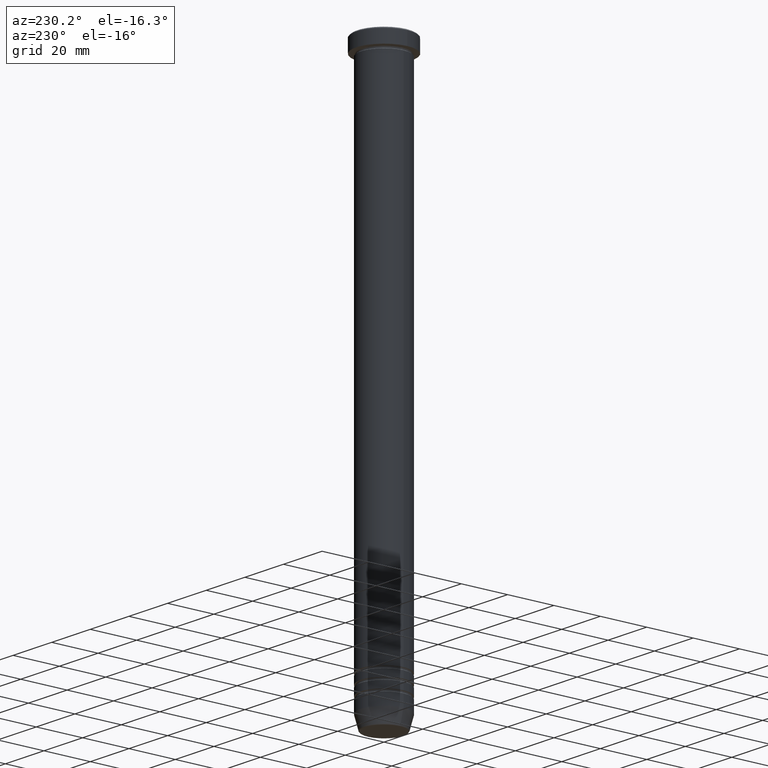
[diagram: clean part render]
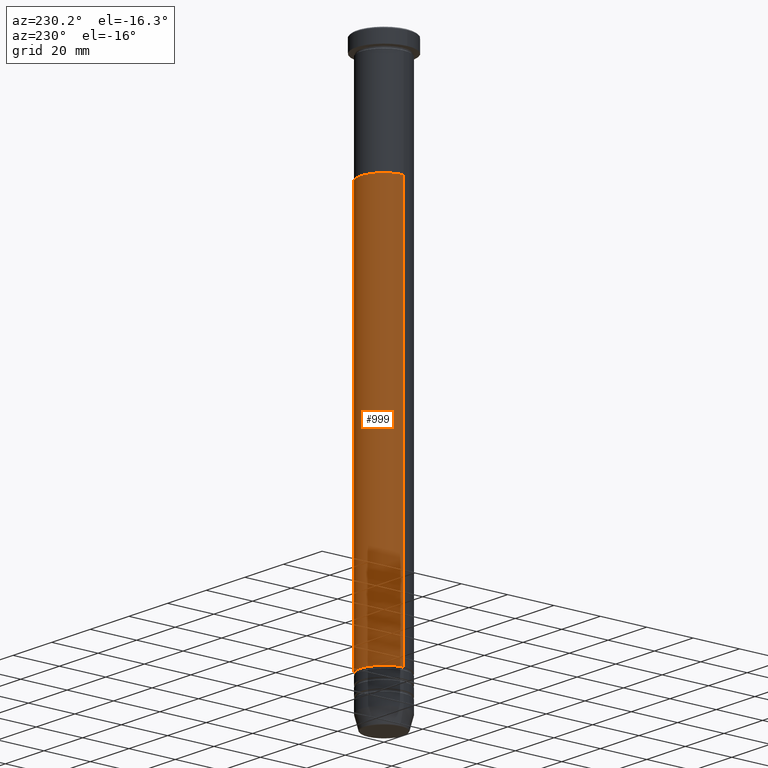
[diagram: same view with one face highlighted and labeled with its STEP entity id]
A machine part, auxiliary view. The second image highlights one B-rep face of the part: STEP entity #999.
In plain terms, the highlighted cylindrical surface (edge-blend (fillet) strip) has radius 10 mm, axis along (-0, -0, 1).
Its self-contained STEP definition (entity closure, byte-faithful):
#18 = CYLINDRICAL_SURFACE ( 'NONE', #203, 9.999999999999996447 ) ;
#116 = ORIENTED_EDGE ( 'NONE', *, *, #156, .T. ) ;
#140 = DIRECTION ( 'NONE',  ( -0.000000000000000000, -0.000000000000000000, 1.000000000000000000 ) ) ;
#156 = EDGE_CURVE ( 'NONE', #727, #258, #737, .T. ) ;
#203 = AXIS2_PLACEMENT_3D ( 'NONE', #591, #357, #271 ) ;
#258 = VERTEX_POINT ( 'NONE', #712 ) ;
#265 = ORIENTED_EDGE ( 'NONE', *, *, #606, .T. ) ;
#271 = DIRECTION ( 'NONE',  ( 1.000000000000000000, 0.000000000000000000, 0.000000000000000000 ) ) ;
#272 = CARTESIAN_POINT ( 'NONE',  ( -9.999999999999996447, 1.224646799147352862E-15, 0.000000000000000000 ) ) ;
#275 = AXIS2_PLACEMENT_3D ( 'NONE', #723, #382, #395 ) ;
#318 = VECTOR ( 'NONE', #599, 1000.000000000000000 ) ;
#355 = CIRCLE ( 'NONE', #731, 10.00000000000000000 ) ;
#357 = DIRECTION ( 'NONE',  ( -0.000000000000000000, -0.000000000000000000, 1.000000000000000000 ) ) ;
#382 = DIRECTION ( 'NONE',  ( -0.000000000000000000, -0.000000000000000000, 1.000000000000000000 ) ) ;
#395 = DIRECTION ( 'NONE',  ( 1.000000000000000000, 0.000000000000000000, 0.000000000000000000 ) ) ;
#447 = LINE ( 'NONE', #694, #558 ) ;
#558 = VECTOR ( 'NONE', #140, 1000.000000000000000 ) ;
#570 = ORIENTED_EDGE ( 'NONE', *, *, #831, .F. ) ;
#583 = VERTEX_POINT ( 'NONE', #1008 ) ;
#591 = CARTESIAN_POINT ( 'NONE',  ( 0.000000000000000000, 0.000000000000000000, 0.000000000000000000 ) ) ;
#599 = DIRECTION ( 'NONE',  ( -0.000000000000000000, -0.000000000000000000, 1.000000000000000000 ) ) ;
#606 = EDGE_CURVE ( 'NONE', #258, #583, #677, .T. ) ;
#656 = DIRECTION ( 'NONE',  ( -0.000000000000000000, -0.000000000000000000, 1.000000000000000000 ) ) ;
#677 = LINE ( 'NONE', #272, #318 ) ;
#694 = CARTESIAN_POINT ( 'NONE',  ( 9.999999999999996447, 0.000000000000000000, 0.000000000000000000 ) ) ;
#712 = CARTESIAN_POINT ( 'NONE',  ( -9.999999999999992895, 1.224646799147352665E-15, -220.0000000000000284 ) ) ;
#722 = CARTESIAN_POINT ( 'NONE',  ( 0.000000000000000000, 0.000000000000000000, -50.00000000000000000 ) ) ;
#723 = CARTESIAN_POINT ( 'NONE',  ( 0.000000000000000000, 0.000000000000000000, -220.0000000000000284 ) ) ;
#727 = VERTEX_POINT ( 'NONE', #738 ) ;
#731 = AXIS2_PLACEMENT_3D ( 'NONE', #722, #656, #989 ) ;
#737 = CIRCLE ( 'NONE', #275, 9.999999999999992895 ) ;
#738 = CARTESIAN_POINT ( 'NONE',  ( 9.999999999999992895, 0.000000000000000000, -220.0000000000000284 ) ) ;
#793 = CARTESIAN_POINT ( 'NONE',  ( 10.00000000000000000, 0.000000000000000000, -50.00000000000000000 ) ) ;
#831 = EDGE_CURVE ( 'NONE', #1053, #583, #355, .T. ) ;
#852 = FACE_OUTER_BOUND ( 'NONE', #879, .T. ) ;
#879 = EDGE_LOOP ( 'NONE', ( #116, #265, #570, #978 ) ) ;
#978 = ORIENTED_EDGE ( 'NONE', *, *, #1054, .F. ) ;
#989 = DIRECTION ( 'NONE',  ( 1.000000000000000000, 0.000000000000000000, 0.000000000000000000 ) ) ;
#999 = ADVANCED_FACE ( 'NONE', ( #852 ), #18, .T. ) ;
#1008 = CARTESIAN_POINT ( 'NONE',  ( -10.00000000000000178, 1.224646799147353454E-15, -50.00000000000000000 ) ) ;
#1053 = VERTEX_POINT ( 'NONE', #793 ) ;
#1054 = EDGE_CURVE ( 'NONE', #727, #1053, #447, .T. ) ;